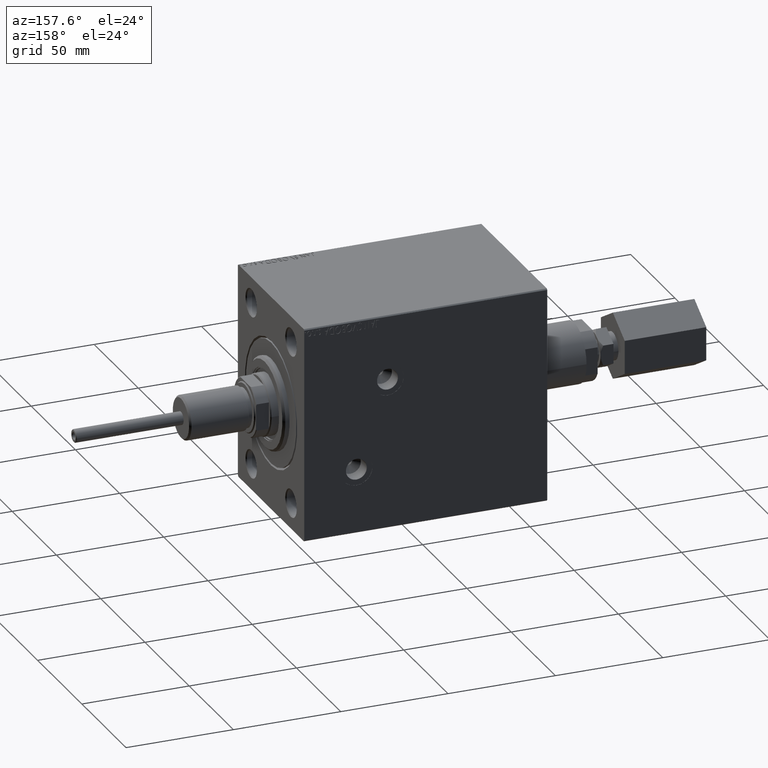
[diagram: clean part render]
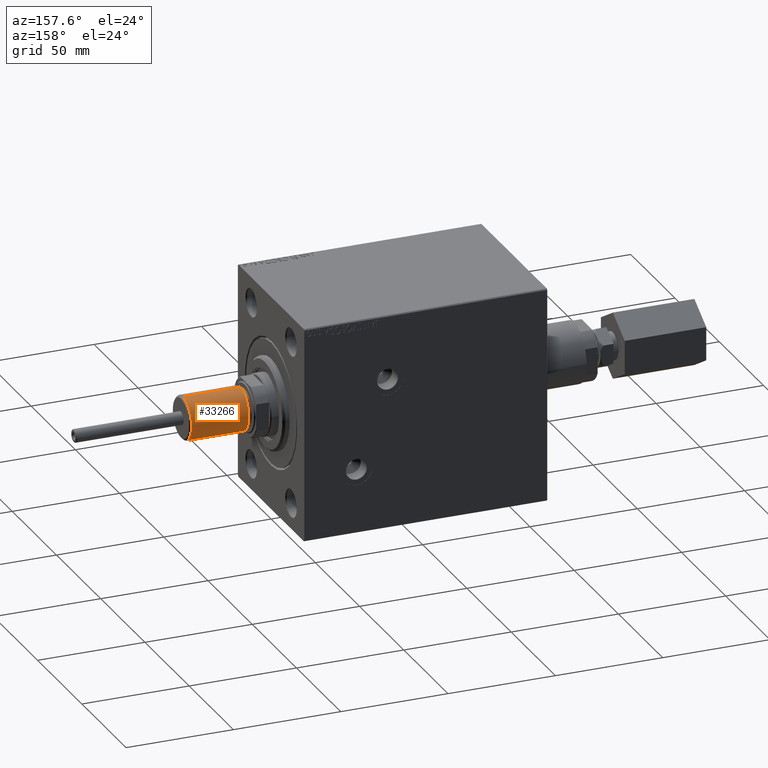
[diagram: same view with one face highlighted and labeled with its STEP entity id]
A machine part, auxiliary view. The second image highlights one B-rep face of the part: STEP entity #33266.
In plain terms, the highlighted cylindrical surface (edge-blend (fillet) strip) has radius 10 mm, axis along (1, -0, -0).
Its self-contained STEP definition (entity closure, byte-faithful):
#1150 = VERTEX_POINT ( 'NONE', #10751 ) ;
#1448 = CARTESIAN_POINT ( 'NONE',  ( -10.00000000000000000, 0.000000000000000000, 27.50000000000000000 ) ) ;
#1809 = DIRECTION ( 'NONE',  ( -0.000000000000000000, -0.000000000000000000, 1.000000000000000000 ) ) ;
#2431 = VERTEX_POINT ( 'NONE', #20472 ) ;
#2841 = EDGE_CURVE ( 'NONE', #2431, #1150, #35206, .T. ) ;
#4529 = ORIENTED_EDGE ( 'NONE', *, *, #23202, .F. ) ;
#6192 = ORIENTED_EDGE ( 'NONE', *, *, #33148, .T. ) ;
#6422 = CYLINDRICAL_SURFACE ( 'NONE', #21767, 10.00000000000000000 ) ;
#7170 = CARTESIAN_POINT ( 'NONE',  ( 0.000000000000000000, 0.000000000000000000, 27.50000000000000000 ) ) ;
#10751 = CARTESIAN_POINT ( 'NONE',  ( -10.00000000000000000, 0.000000000000000000, 0.7999999999999986011 ) ) ;
#11244 = EDGE_LOOP ( 'NONE', ( #4529, #6192, #26101, #21761 ) ) ;
#12992 = LINE ( 'NONE', #1448, #26597 ) ;
#13868 = DIRECTION ( 'NONE',  ( -1.000000000000000000, 0.000000000000000000, 0.000000000000000000 ) ) ;
#14486 = AXIS2_PLACEMENT_3D ( 'NONE', #27974, #1809, #42437 ) ;
#17189 = AXIS2_PLACEMENT_3D ( 'NONE', #7170, #24690, #36483 ) ;
#19457 = VECTOR ( 'NONE', #23466, 1000.000000000000000 ) ;
#19628 = CARTESIAN_POINT ( 'NONE',  ( 10.00000000000000000, 1.224646799147353256E-15, 27.50000000000000000 ) ) ;
#20472 = CARTESIAN_POINT ( 'NONE',  ( 10.00000000000000000, 1.224646799147353256E-15, 0.7999999999999986011 ) ) ;
#21761 = ORIENTED_EDGE ( 'NONE', *, *, #41032, .F. ) ;
#21767 = AXIS2_PLACEMENT_3D ( 'NONE', #31404, #46804, #13868 ) ;
#21795 = CIRCLE ( 'NONE', #17189, 10.00000000000000000 ) ;
#22769 = VERTEX_POINT ( 'NONE', #33276 ) ;
#23202 = EDGE_CURVE ( 'NONE', #29266, #22769, #21795, .T. ) ;
#23466 = DIRECTION ( 'NONE',  ( -0.000000000000000000, -0.000000000000000000, -1.000000000000000000 ) ) ;
#24690 = DIRECTION ( 'NONE',  ( 0.000000000000000000, 0.000000000000000000, 1.000000000000000000 ) ) ;
#26101 = ORIENTED_EDGE ( 'NONE', *, *, #2841, .T. ) ;
#26597 = VECTOR ( 'NONE', #31227, 1000.000000000000000 ) ;
#27974 = CARTESIAN_POINT ( 'NONE',  ( 0.000000000000000000, 0.000000000000000000, 0.7999999999999986011 ) ) ;
#28268 = FACE_OUTER_BOUND ( 'NONE', #11244, .T. ) ;
#29266 = VERTEX_POINT ( 'NONE', #32145 ) ;
#31227 = DIRECTION ( 'NONE',  ( -0.000000000000000000, -0.000000000000000000, -1.000000000000000000 ) ) ;
#31404 = CARTESIAN_POINT ( 'NONE',  ( 0.000000000000000000, 0.000000000000000000, 27.50000000000000000 ) ) ;
#32145 = CARTESIAN_POINT ( 'NONE',  ( 10.00000000000000000, 1.224646799147353256E-15, 27.50000000000000000 ) ) ;
#33148 = EDGE_CURVE ( 'NONE', #29266, #2431, #45612, .T. ) ;
#33266 = ADVANCED_FACE ( 'NONE', ( #28268 ), #6422, .T. ) ;
#33276 = CARTESIAN_POINT ( 'NONE',  ( -10.00000000000000000, 0.000000000000000000, 27.50000000000000000 ) ) ;
#35206 = CIRCLE ( 'NONE', #14486, 10.00000000000000000 ) ;
#36483 = DIRECTION ( 'NONE',  ( 1.000000000000000000, 0.000000000000000000, 0.000000000000000000 ) ) ;
#41032 = EDGE_CURVE ( 'NONE', #22769, #1150, #12992, .T. ) ;
#42437 = DIRECTION ( 'NONE',  ( 1.000000000000000000, 0.000000000000000000, 0.000000000000000000 ) ) ;
#45612 = LINE ( 'NONE', #19628, #19457 ) ;
#46804 = DIRECTION ( 'NONE',  ( -0.000000000000000000, -0.000000000000000000, -1.000000000000000000 ) ) ;